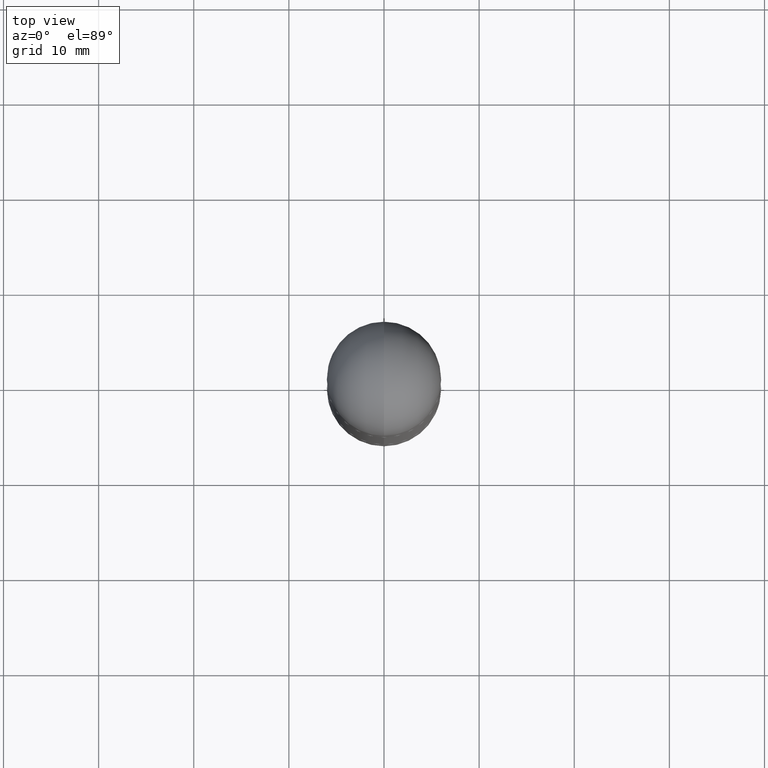
[diagram: clean part render]
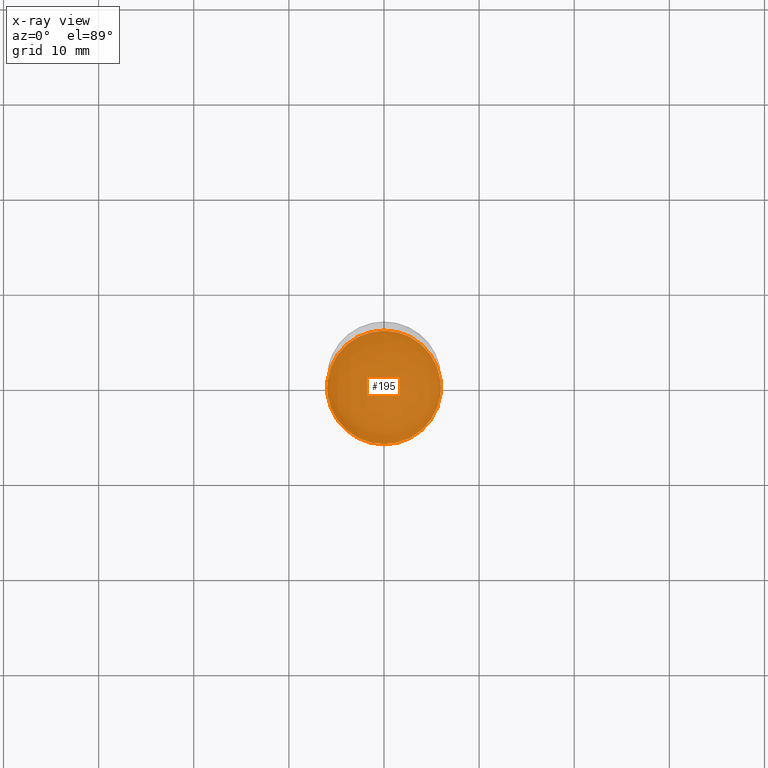
[diagram: x-ray — body ghosted, one internal face saturated and labeled with its STEP entity id]
A machine part, top view, then the same camera in x-ray: the body is ghosted and one INTERNAL B-rep face — a face not visible from any outside direction — is saturated and labeled: STEP entity #195.
In plain terms, the highlighted planar face has unit normal (-0, 0, 1).
Its self-contained STEP definition (entity closure, byte-faithful):
#41 = DIRECTION ( 'NONE',  ( -6.982962677686265133E-15, -1.000000000000000000, 3.484499991918703113E-15 ) ) ;
#61 = DIRECTION ( 'NONE',  ( -6.982962677686265133E-15, -1.000000000000000000, 3.484499991918703113E-15 ) ) ;
#120 = DIRECTION ( 'NONE',  ( -2.446269011737253396E-29, 3.490335398947642861E-15, 1.000000000000000000 ) ) ;
#129 = CARTESIAN_POINT ( 'NONE',  ( 5.682438287364464095E-29, -8.107700098215478665E-15, -2.322899999999999743 ) ) ;
#132 = EDGE_CURVE ( 'NONE', #670, #723, #717, .T. ) ;
#158 = EDGE_LOOP ( 'NONE', ( #566, #160 ) ) ;
#160 = ORIENTED_EDGE ( 'NONE', *, *, #132, .F. ) ;
#187 = DIRECTION ( 'NONE',  ( -6.982962677686265922E-15, -1.000000000000000000, 3.490335398947642466E-15 ) ) ;
#195 = ADVANCED_FACE ( 'NONE', ( #749 ), #755, .F. ) ;
#204 = CIRCLE ( 'NONE', #247, 0.2351999999999999924 ) ;
#247 = AXIS2_PLACEMENT_3D ( 'NONE', #372, #497, #61 ) ;
#261 = DIRECTION ( 'NONE',  ( -2.446269011737253396E-29, 3.490335398947642466E-15, 1.000000000000000000 ) ) ;
#284 = CARTESIAN_POINT ( 'NONE',  ( 1.674749228186613674E-15, 0.2351999999999918878, -2.322900000000000631 ) ) ;
#309 = EDGE_CURVE ( 'NONE', #723, #670, #204, .T. ) ;
#360 = CARTESIAN_POINT ( 'NONE',  ( 5.682438287364464095E-29, -8.107700098215478665E-15, -2.322899999999999743 ) ) ;
#372 = CARTESIAN_POINT ( 'NONE',  ( 5.682438287364464095E-29, -8.107700098215478665E-15, -2.322899999999999743 ) ) ;
#497 = DIRECTION ( 'NONE',  ( -2.446269011737253396E-29, 3.490335398947642861E-15, 1.000000000000000000 ) ) ;
#527 = AXIS2_PLACEMENT_3D ( 'NONE', #129, #261, #187 ) ;
#566 = ORIENTED_EDGE ( 'NONE', *, *, #309, .F. ) ;
#670 = VERTEX_POINT ( 'NONE', #284 ) ;
#692 = CARTESIAN_POINT ( 'NONE',  ( -1.642392821791752924E-15, -0.2352000000000080970, -2.322899999999998855 ) ) ;
#717 = CIRCLE ( 'NONE', #801, 0.2351999999999999924 ) ;
#723 = VERTEX_POINT ( 'NONE', #692 ) ;
#749 = FACE_OUTER_BOUND ( 'NONE', #158, .T. ) ;
#755 = PLANE ( 'NONE',  #527 ) ;
#801 = AXIS2_PLACEMENT_3D ( 'NONE', #360, #120, #41 ) ;